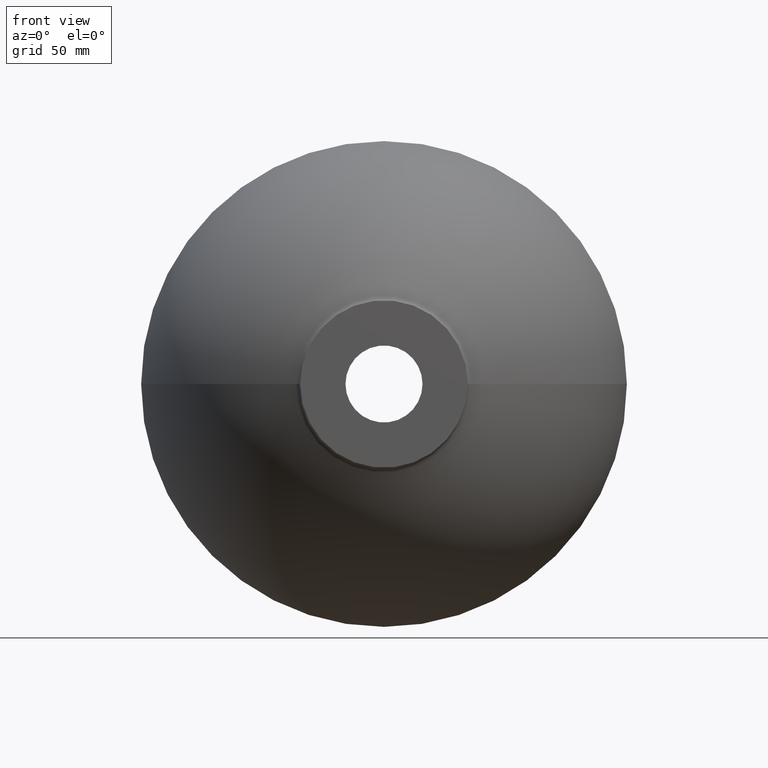
[diagram: clean part render]
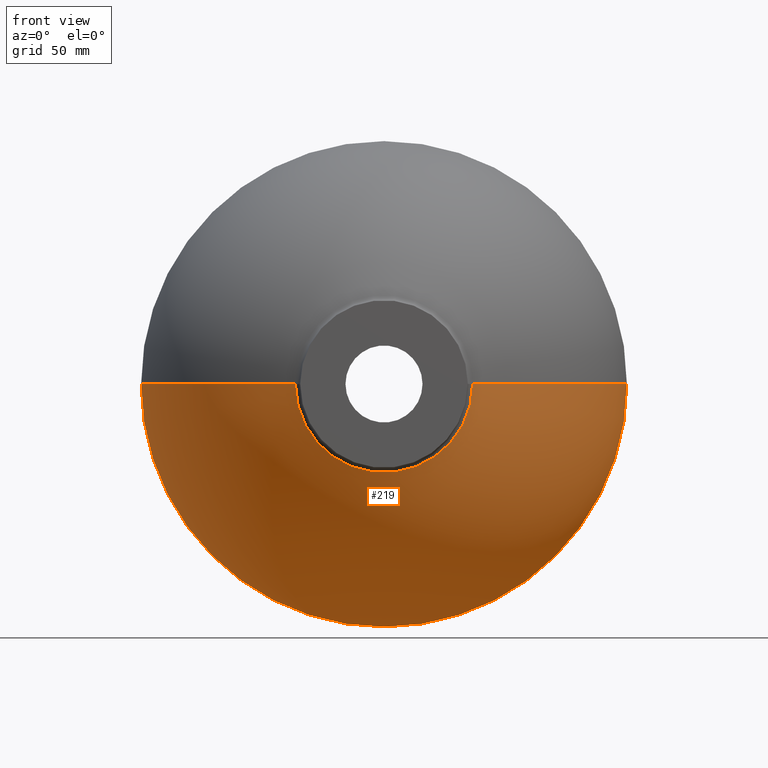
[diagram: same view with one face highlighted and labeled with its STEP entity id]
A machine part, front view. The second image highlights one B-rep face of the part: STEP entity #219.
In plain terms, the highlighted toroidal blend (fillet) surface has major radius 13.1579 mm and minor (blend) radius 158.158 mm.
Its self-contained STEP definition (entity closure, byte-faithful):
#2 = CARTESIAN_POINT ( 'NONE',  ( -52.91129032258071900, 6.303157817668902000, 0.0000000000000000000 ) ) ;
#17 = DIRECTION ( 'NONE',  ( -1.224646799147353200E-016, -1.352972573047500600E-032, 1.000000000000000000 ) ) ;
#31 = CARTESIAN_POINT ( 'NONE',  ( -13.15789473684206400, 150.0000000000000000, -1.611377367299143200E-015 ) ) ;
#39 = EDGE_CURVE ( 'NONE', #300, #186, #200, .T. ) ;
#44 = AXIS2_PLACEMENT_3D ( 'NONE', #397, #370, #337 ) ;
#57 = AXIS2_PLACEMENT_3D ( 'NONE', #390, #407, #383 ) ;
#85 = EDGE_CURVE ( 'NONE', #186, #139, #153, .T. ) ;
#138 = EDGE_LOOP ( 'NONE', ( #180, #331, #423, #314 ) ) ;
#139 = VERTEX_POINT ( 'NONE', #358 ) ;
#153 = CIRCLE ( 'NONE', #44, 158.1578947368420800 ) ;
#158 = DIRECTION ( 'NONE',  ( -1.104785946437366900E-016, 1.000000000000000000, -0.0000000000000000000 ) ) ;
#159 = CIRCLE ( 'NONE', #57, 145.0000000000000000 ) ;
#164 = AXIS2_PLACEMENT_3D ( 'NONE', #216, #158, #369 ) ;
#176 = TOROIDAL_SURFACE ( 'NONE', #440, -13.15789473684206000, 158.1578947368420800 ) ;
#180 = ORIENTED_EDGE ( 'NONE', *, *, #182, .F. ) ;
#182 = EDGE_CURVE ( 'NONE', #300, #449, #428, .T. ) ;
#186 = VERTEX_POINT ( 'NONE', #2 ) ;
#200 = CIRCLE ( 'NONE', #164, 52.91129032258073300 ) ;
#207 = AXIS2_PLACEMENT_3D ( 'NONE', #31, #17, #214 ) ;
#214 = DIRECTION ( 'NONE',  ( 1.000000000000000000, 0.0000000000000000000, 1.224646799147353200E-016 ) ) ;
#215 = CARTESIAN_POINT ( 'NONE',  ( 145.0000000000000000, 150.0000000000000300, 1.775737858763661900E-014 ) ) ;
#216 = CARTESIAN_POINT ( 'NONE',  ( 1.318142379030071500E-014, 6.303157817668908300, 0.0000000000000000000 ) ) ;
#219 = ADVANCED_FACE ( 'NONE', ( #429 ), #176, .T. ) ;
#232 = DIRECTION ( 'NONE',  ( -1.000000000000000000, -1.104785946437366800E-016, 0.0000000000000000000 ) ) ;
#300 = VERTEX_POINT ( 'NONE', #385 ) ;
#314 = ORIENTED_EDGE ( 'NONE', *, *, #437, .F. ) ;
#331 = ORIENTED_EDGE ( 'NONE', *, *, #39, .T. ) ;
#337 = DIRECTION ( 'NONE',  ( -1.000000000000000000, 0.0000000000000000000, 0.0000000000000000000 ) ) ;
#358 = CARTESIAN_POINT ( 'NONE',  ( -145.0000000000000000, 149.9999999999999700, 0.0000000000000000000 ) ) ;
#369 = DIRECTION ( 'NONE',  ( -1.000000000000000000, -1.147492742834831600E-016, 0.0000000000000000000 ) ) ;
#370 = DIRECTION ( 'NONE',  ( 0.0000000000000000000, -0.0000000000000000000, -1.000000000000000000 ) ) ;
#383 = DIRECTION ( 'NONE',  ( -1.000000000000000000, -1.914177628664062900E-016, 0.0000000000000000000 ) ) ;
#385 = CARTESIAN_POINT ( 'NONE',  ( 52.91129032258075400, 6.303157817668914500, 1.211857141043355500E-014 ) ) ;
#389 = CARTESIAN_POINT ( 'NONE',  ( -3.469446951953614200E-015, 150.0000000000000000, 0.0000000000000000000 ) ) ;
#390 = CARTESIAN_POINT ( 'NONE',  ( -2.694001388746044600E-015, 150.0000000000000000, 0.0000000000000000000 ) ) ;
#397 = CARTESIAN_POINT ( 'NONE',  ( 13.15789473684205600, 150.0000000000000000, 0.0000000000000000000 ) ) ;
#407 = DIRECTION ( 'NONE',  ( -1.104785946437366900E-016, 1.000000000000000000, -0.0000000000000000000 ) ) ;
#423 = ORIENTED_EDGE ( 'NONE', *, *, #85, .T. ) ;
#424 = DIRECTION ( 'NONE',  ( -1.104785946437366900E-016, 1.000000000000000000, -0.0000000000000000000 ) ) ;
#428 = CIRCLE ( 'NONE', #207, 158.1578947368420800 ) ;
#429 = FACE_OUTER_BOUND ( 'NONE', #138, .T. ) ;
#437 = EDGE_CURVE ( 'NONE', #449, #139, #159, .T. ) ;
#440 = AXIS2_PLACEMENT_3D ( 'NONE', #389, #424, #232 ) ;
#449 = VERTEX_POINT ( 'NONE', #215 ) ;